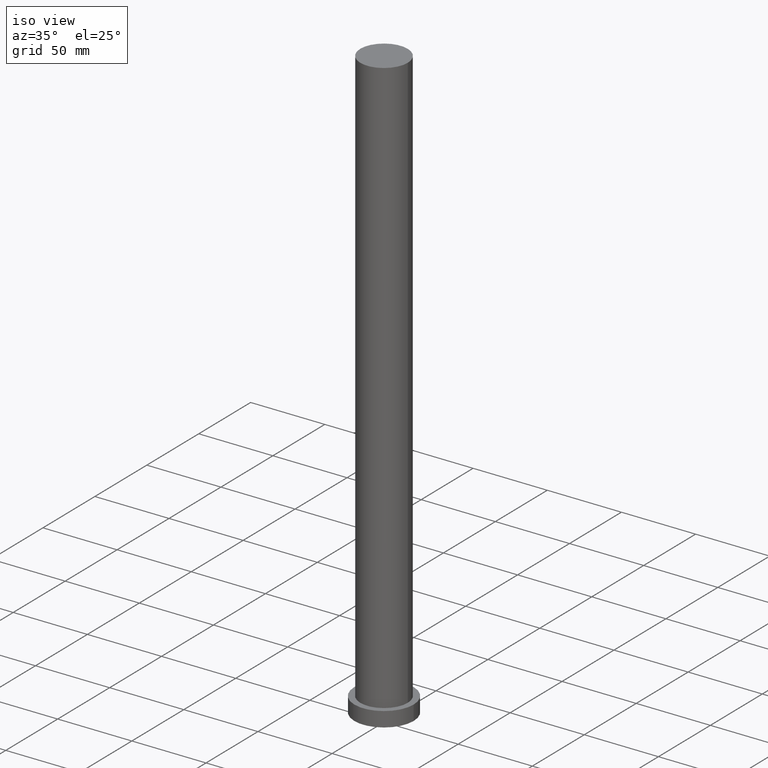
[diagram: clean part render]
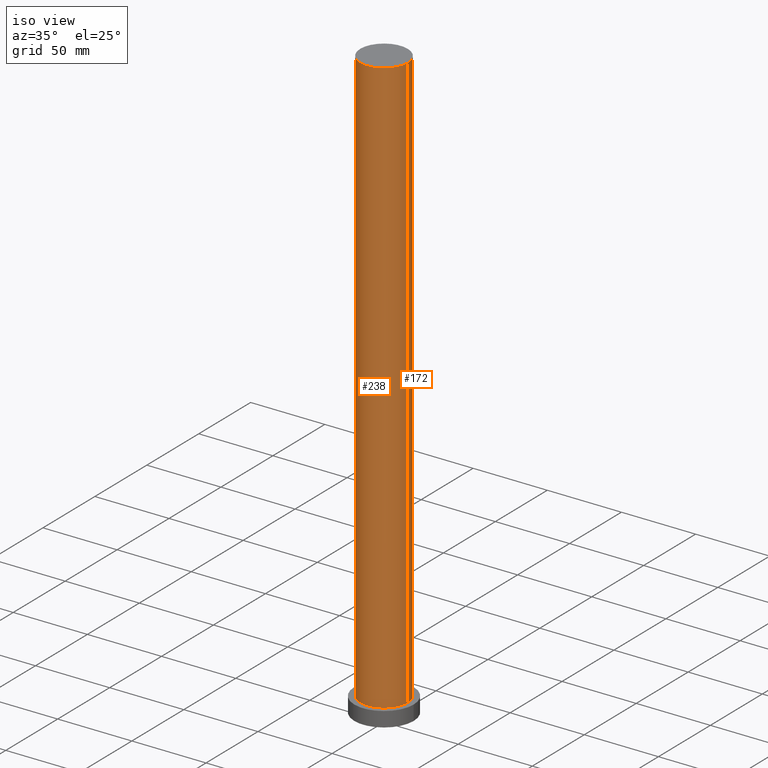
[diagram: same view with one multi-face feature highlighted, each face labeled with its STEP entity id]
A machine part, iso view. The highlighted faces form ONE feature: a constant-radius fillet chain: 2 tangent blend faces with common blend radius 16 mm. The faces share edges in the B-rep.
Their STEP definitions:
[1] entity #172 (Cylinder):
#1 = LINE ( 'NONE', #216, #3 ) ;
#3 = VECTOR ( 'NONE', #98, 1000.000000000000000 ) ;
#14 = CARTESIAN_POINT ( 'NONE',  ( -16.00000000000000000, 0.000000000000000000, 10.00000000000000000 ) ) ;
#18 = VERTEX_POINT ( 'NONE', #14 ) ;
#23 = CARTESIAN_POINT ( 'NONE',  ( 0.000000000000000000, 0.000000000000000000, 400.0000000000000000 ) ) ;
#24 = DIRECTION ( 'NONE',  ( 0.000000000000000000, 0.000000000000000000, 1.000000000000000000 ) ) ;
#37 = ORIENTED_EDGE ( 'NONE', *, *, #84, .T. ) ;
#42 = DIRECTION ( 'NONE',  ( 1.000000000000000000, 0.000000000000000000, 0.000000000000000000 ) ) ;
#43 = VECTOR ( 'NONE', #64, 1000.000000000000000 ) ;
#49 = ORIENTED_EDGE ( 'NONE', *, *, #202, .F. ) ;
#60 = CARTESIAN_POINT ( 'NONE',  ( 16.00000000000000000, 1.959434878635765131E-15, 400.0000000000000000 ) ) ;
#64 = DIRECTION ( 'NONE',  ( -0.000000000000000000, -0.000000000000000000, -1.000000000000000000 ) ) ;
#74 = VERTEX_POINT ( 'NONE', #92 ) ;
#75 = AXIS2_PLACEMENT_3D ( 'NONE', #23, #24, #42 ) ;
#77 = DIRECTION ( 'NONE',  ( -0.000000000000000000, -0.000000000000000000, -1.000000000000000000 ) ) ;
#84 = EDGE_CURVE ( 'NONE', #178, #18, #249, .T. ) ;
#92 = CARTESIAN_POINT ( 'NONE',  ( 16.00000000000000000, 1.959434878635765131E-15, 400.0000000000000000 ) ) ;
#98 = DIRECTION ( 'NONE',  ( -0.000000000000000000, -0.000000000000000000, -1.000000000000000000 ) ) ;
#103 = AXIS2_PLACEMENT_3D ( 'NONE', #180, #77, #117 ) ;
#114 = CARTESIAN_POINT ( 'NONE',  ( -16.00000000000000000, 0.000000000000000000, 400.0000000000000000 ) ) ;
#116 = CYLINDRICAL_SURFACE ( 'NONE', #103, 16.00000000000000000 ) ;
#117 = DIRECTION ( 'NONE',  ( -1.000000000000000000, 0.000000000000000000, 0.000000000000000000 ) ) ;
#123 = VERTEX_POINT ( 'NONE', #114 ) ;
#153 = CARTESIAN_POINT ( 'NONE',  ( 0.000000000000000000, 0.000000000000000000, 10.00000000000000000 ) ) ;
#160 = CIRCLE ( 'NONE', #75, 16.00000000000000000 ) ;
#162 = EDGE_CURVE ( 'NONE', #74, #178, #237, .T. ) ;
#166 = AXIS2_PLACEMENT_3D ( 'NONE', #153, #209, #196 ) ;
#172 = ADVANCED_FACE ( 'NONE', ( #185 ), #116, .T. ) ;
#176 = ORIENTED_EDGE ( 'NONE', *, *, #162, .T. ) ;
#178 = VERTEX_POINT ( 'NONE', #239 ) ;
#180 = CARTESIAN_POINT ( 'NONE',  ( 0.000000000000000000, 0.000000000000000000, 400.0000000000000000 ) ) ;
#185 = FACE_OUTER_BOUND ( 'NONE', #232, .T. ) ;
#192 = ORIENTED_EDGE ( 'NONE', *, *, #227, .F. ) ;
#196 = DIRECTION ( 'NONE',  ( 1.000000000000000000, 0.000000000000000000, 0.000000000000000000 ) ) ;
#202 = EDGE_CURVE ( 'NONE', #123, #18, #1, .T. ) ;
#209 = DIRECTION ( 'NONE',  ( 0.000000000000000000, 0.000000000000000000, 1.000000000000000000 ) ) ;
#216 = CARTESIAN_POINT ( 'NONE',  ( -16.00000000000000000, 0.000000000000000000, 400.0000000000000000 ) ) ;
#227 = EDGE_CURVE ( 'NONE', #74, #123, #160, .T. ) ;
#232 = EDGE_LOOP ( 'NONE', ( #192, #176, #37, #49 ) ) ;
#237 = LINE ( 'NONE', #60, #43 ) ;
#239 = CARTESIAN_POINT ( 'NONE',  ( 16.00000000000000000, 1.959434878635765131E-15, 10.00000000000000000 ) ) ;
#249 = CIRCLE ( 'NONE', #166, 16.00000000000000000 ) ;
[2] entity #238 (Cylinder):
#1 = LINE ( 'NONE', #216, #3 ) ;
#3 = VECTOR ( 'NONE', #98, 1000.000000000000000 ) ;
#14 = CARTESIAN_POINT ( 'NONE',  ( -16.00000000000000000, 0.000000000000000000, 10.00000000000000000 ) ) ;
#16 = EDGE_CURVE ( 'NONE', #123, #74, #112, .T. ) ;
#18 = VERTEX_POINT ( 'NONE', #14 ) ;
#21 = AXIS2_PLACEMENT_3D ( 'NONE', #213, #195, #233 ) ;
#43 = VECTOR ( 'NONE', #64, 1000.000000000000000 ) ;
#60 = CARTESIAN_POINT ( 'NONE',  ( 16.00000000000000000, 1.959434878635765131E-15, 400.0000000000000000 ) ) ;
#64 = DIRECTION ( 'NONE',  ( -0.000000000000000000, -0.000000000000000000, -1.000000000000000000 ) ) ;
#72 = ORIENTED_EDGE ( 'NONE', *, *, #16, .F. ) ;
#74 = VERTEX_POINT ( 'NONE', #92 ) ;
#78 = CYLINDRICAL_SURFACE ( 'NONE', #128, 16.00000000000000000 ) ;
#79 = CARTESIAN_POINT ( 'NONE',  ( 0.000000000000000000, 0.000000000000000000, 400.0000000000000000 ) ) ;
#92 = CARTESIAN_POINT ( 'NONE',  ( 16.00000000000000000, 1.959434878635765131E-15, 400.0000000000000000 ) ) ;
#98 = DIRECTION ( 'NONE',  ( -0.000000000000000000, -0.000000000000000000, -1.000000000000000000 ) ) ;
#101 = CIRCLE ( 'NONE', #137, 16.00000000000000000 ) ;
#112 = CIRCLE ( 'NONE', #21, 16.00000000000000000 ) ;
#114 = CARTESIAN_POINT ( 'NONE',  ( -16.00000000000000000, 0.000000000000000000, 400.0000000000000000 ) ) ;
#123 = VERTEX_POINT ( 'NONE', #114 ) ;
#127 = ORIENTED_EDGE ( 'NONE', *, *, #202, .T. ) ;
#128 = AXIS2_PLACEMENT_3D ( 'NONE', #79, #163, #181 ) ;
#130 = ORIENTED_EDGE ( 'NONE', *, *, #162, .F. ) ;
#131 = ORIENTED_EDGE ( 'NONE', *, *, #143, .T. ) ;
#137 = AXIS2_PLACEMENT_3D ( 'NONE', #173, #150, #174 ) ;
#139 = FACE_OUTER_BOUND ( 'NONE', #229, .T. ) ;
#143 = EDGE_CURVE ( 'NONE', #18, #178, #101, .T. ) ;
#150 = DIRECTION ( 'NONE',  ( 0.000000000000000000, 0.000000000000000000, 1.000000000000000000 ) ) ;
#162 = EDGE_CURVE ( 'NONE', #74, #178, #237, .T. ) ;
#163 = DIRECTION ( 'NONE',  ( -0.000000000000000000, -0.000000000000000000, -1.000000000000000000 ) ) ;
#173 = CARTESIAN_POINT ( 'NONE',  ( 0.000000000000000000, 0.000000000000000000, 10.00000000000000000 ) ) ;
#174 = DIRECTION ( 'NONE',  ( 1.000000000000000000, 0.000000000000000000, 0.000000000000000000 ) ) ;
#178 = VERTEX_POINT ( 'NONE', #239 ) ;
#181 = DIRECTION ( 'NONE',  ( -1.000000000000000000, 0.000000000000000000, 0.000000000000000000 ) ) ;
#195 = DIRECTION ( 'NONE',  ( 0.000000000000000000, 0.000000000000000000, 1.000000000000000000 ) ) ;
#202 = EDGE_CURVE ( 'NONE', #123, #18, #1, .T. ) ;
#213 = CARTESIAN_POINT ( 'NONE',  ( 0.000000000000000000, 0.000000000000000000, 400.0000000000000000 ) ) ;
#216 = CARTESIAN_POINT ( 'NONE',  ( -16.00000000000000000, 0.000000000000000000, 400.0000000000000000 ) ) ;
#229 = EDGE_LOOP ( 'NONE', ( #130, #72, #127, #131 ) ) ;
#233 = DIRECTION ( 'NONE',  ( 1.000000000000000000, 0.000000000000000000, 0.000000000000000000 ) ) ;
#237 = LINE ( 'NONE', #60, #43 ) ;
#238 = ADVANCED_FACE ( 'NONE', ( #139 ), #78, .T. ) ;
#239 = CARTESIAN_POINT ( 'NONE',  ( 16.00000000000000000, 1.959434878635765131E-15, 10.00000000000000000 ) ) ;